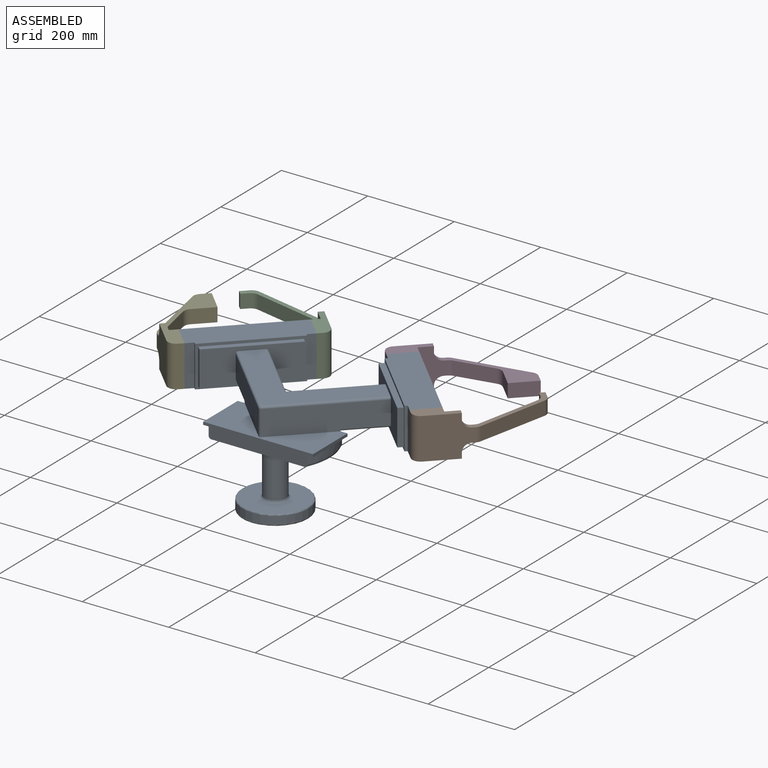
[diagram: assembled view]
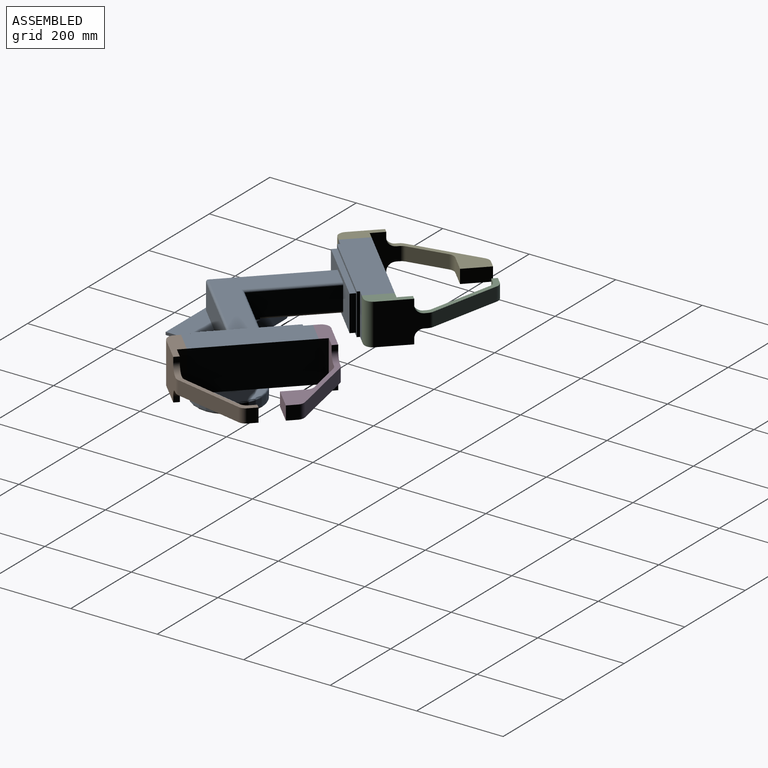
[diagram: assembled view, second angle]
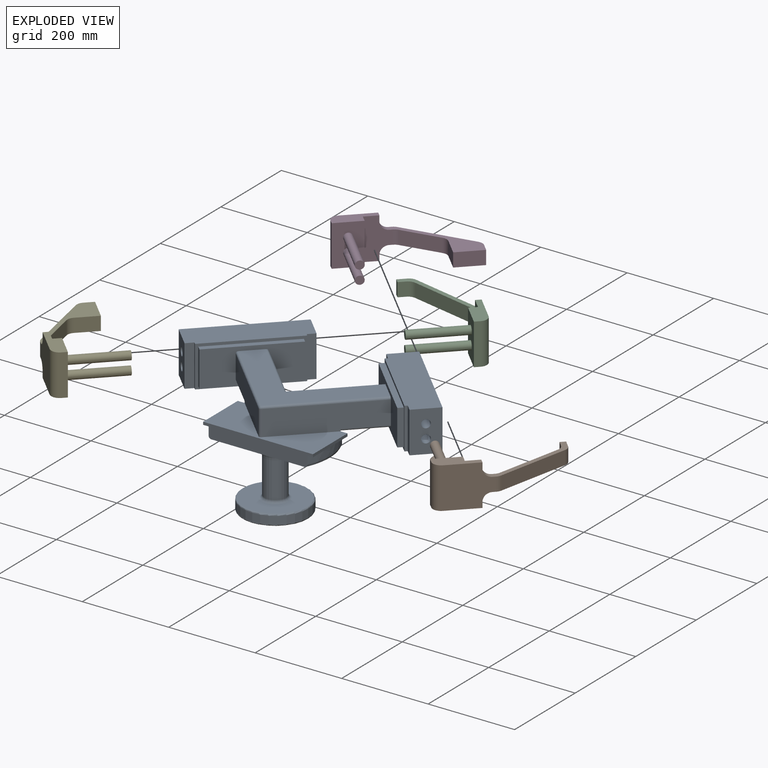
[diagram: exploded view]
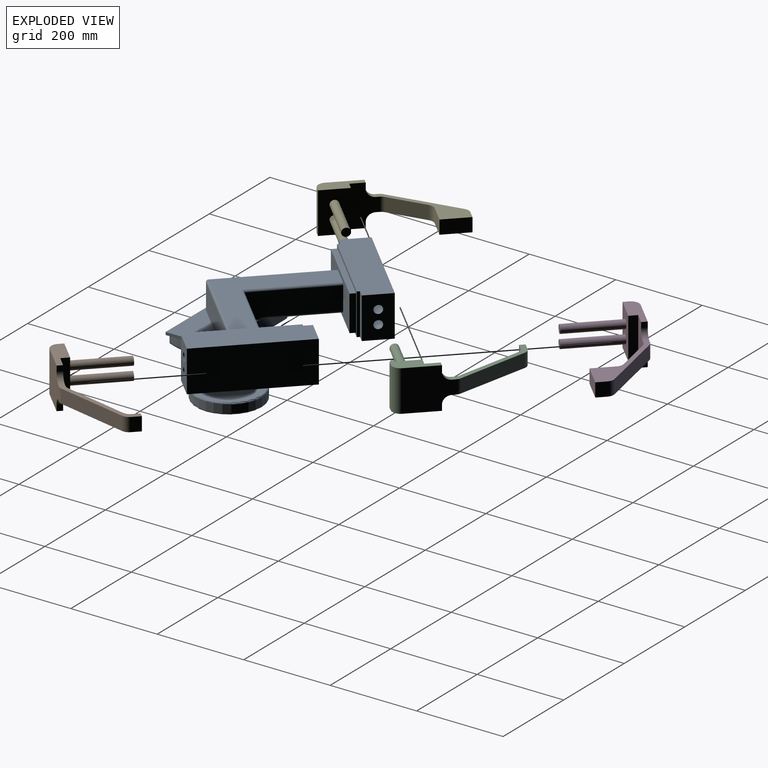
[diagram: exploded view, second angle]
ASSEMBLY  parts=5 mates=4
PART A: 74 faces, bbox 612.3x380.7x253 mm
  f0: plane 254x114.3mm, normal (0,0,1), area 16709.7mm2, adj f9,f11,f19,f20,f27,f28,f37
  f1: cylinder r=76.2mm len=152.4mm, axis (0,0,-1), area 9120.7mm2, adj f4,f5
  f2: plane 146.05x146.05mm, normal (0,0,1), area 13586.1mm2, adj f5,f7
  f3: plane 146.05x146.05mm, normal (0,0,-1), area 16753mm2, adj f4
  f4: torus R=73.03mm, axis (0,0,1), area 2351.6mm2, adj f1,f3
  f5: torus R=73.03mm, axis (0,0,1), area 2351.6mm2, adj f1,f2
  f6: cylinder r=25.4mm len=82.55mm, axis (0,0,-1), area 13174.4mm2, adj f7,f13
  f7: torus R=31.75mm, axis (0,0,1), area 1736.5mm2, adj f2,f6
  f8: extruded ~114.3x19.05mm, area 2247.1mm2, adj f9,f11,f14,f16,f17
  f9: plane 255.18x32.93mm, normal (0,-1,0), area 7400.3mm2, adj f0,f8,f10,f12,f14,f15,f16,f19
  f10: extruded ~114.3x19.05mm, area 2247.1mm2, adj f9,f11,f15,f18,f22
  f11: plane 256.14x38.97mm, normal (0,1,0), area 7431.7mm2, adj f0,f8,f10,f12,f14,f15,f17,f18
  f12: plane 241.3x114.38mm, normal (0,0,-1), area 18457.1mm2, adj f9,f11,f13,f14,f15
  f13: torus R=50.8mm, axis (0,0,1), area 8681.3mm2, adj f6,f12
  f14: bspline ~126.12x21.61mm, area 1185.5mm2, adj f8,f9,f11,f12
  f15: bspline ~126.12x21.61mm, area 1185.5mm2, adj f9,f10,f11,f12
  f16: plane 58.34x13.89mm, normal (0,0,-1), area 241.9mm2, adj f8,f9,f20
  f17: plane 58.34x13.89mm, normal (0,0,-1), area 241.9mm2, adj f8,f11,f20
  f18: plane 58.34x13.89mm, normal (0,0,-1), area 241.9mm2, adj f10,f11,f19
  f19: plane 114.3x6.35mm, normal (1,0,0), area 725.8mm2, adj f0,f9,f11,f18,f22
  f20: plane 114.3x6.35mm, normal (-1,0,0), area 725.8mm2, adj f0,f9,f11,f16,f17
  f21: plane 42.46x21.23mm, normal (0,0,1), area 450.7mm2, adj f11,f25,f26
  f22: plane 58.34x13.89mm, normal (0,0,-1), area 241.9mm2, adj f9,f10,f19
  f23: plane 147.34x109.62mm, normal (0,0,-1), area 6846.4mm2, adj f11,f30,f33,f55
  f24: plane 147.34x109.62mm, normal (0,0,-1), area 6846.4mm2, adj f11,f31,f32,f44
  f25: plane 134.44x134.44mm, normal (-0.71,0.71,0), area 10293.8mm2, adj f11,f21,f26,f30,f38,f55
  f26: plane 134.44x134.44mm, normal (0.71,0.71,0), area 10293.8mm2, adj f11,f21,f25,f31,f39,f44
  f27: plane 175.75x175.75mm, normal (-0.71,-0.71,0), area 14029.3mm2, adj f0,f11,f32,f34,f37,f44
  f28: plane 175.75x175.75mm, normal (0.71,-0.71,0), area 14029.3mm2, adj f0,f11,f33,f35,f37,f55
  f29: plane 351.5x213.47mm, normal (0,0,1), area 23669.7mm2, adj f34,f35,f38,f39,f44,f55
  f30: cylinder r=5.08mm len=116.8mm, axis (-0.71,-0.71,0), area 1257.3mm2, adj f11,f23,f25,f55
  f31: cylinder r=5.08mm len=116.8mm, axis (-0.71,0.71,0), area 1257.3mm2, adj f11,f24,f26,f44
  f32: cylinder r=5.08mm len=75.49mm, axis (0.71,-0.71,0), area 791.1mm2, adj f11,f24,f27,f44
  f33: cylinder r=5.08mm len=75.49mm, axis (0.71,0.71,0), area 791.1mm2, adj f11,f23,f28,f55
  f34: cylinder r=5.08mm len=179.34mm, axis (-0.71,0.71,0), area 1983.3mm2, adj f27,f29,f36,f44
  f35: cylinder r=5.08mm len=179.34mm, axis (-0.71,-0.71,0), area 1983.3mm2, adj f28,f29,f36,f55
  f36: sphere r=5.08mm, area 40.5mm2, adj f34,f35,f37
  f37: cylinder r=5.08mm len=58.42mm, axis (0,0,1), area 466.2mm2, adj f0,f27,f28,f36
  f38: cylinder r=5.08mm len=141.62mm, axis (0.71,0.71,0), area 1537.4mm2, adj f25,f29,f39,f55
  f39: cylinder r=5.08mm len=141.62mm, axis (0.71,-0.71,0), area 1537.4mm2, adj f26,f29,f38,f44
  f40: plane 152.66x152.66mm, normal (0,0,-1), area 2580.6mm2, adj f41,f43,f44,f49
  f41: plane 82.55x8.98mm, normal (-0.71,-0.71,0), area 1048.4mm2, adj f40,f42,f44,f49
  f42: plane 152.66x152.66mm, normal (0,0,1), area 2580.6mm2, adj f41,f43,f44,f49
  f43: plane 82.55x8.98mm, normal (0.71,0.71,0), area 1048.4mm2, adj f40,f42,f44,f49
  f44: plane 143.68x143.68mm, normal (0.71,-0.71,0), area 12764.1mm2, adj f24,f26,f27,f29,f31,f32,f34,f39
  f45: plane 95.25x4.49mm, normal (-0.71,-0.71,0), area 604.8mm2, adj f46,f48,f49,f50
  f46: plane 224.51x224.51mm, normal (0,0,1), area 17500mm2, adj f45,f47,f49,f50,f51,f52,f53,f54
  f47: plane 95.25x4.49mm, normal (0.71,0.71,0), area 604.8mm2, adj f46,f48,f49,f51
  f48: plane 224.51x224.51mm, normal (0,0,-1), area 17500mm2, adj f45,f47,f49,f50,f51,f52,f53,f54
  f49: plane 152.66x152.66mm, normal (0.71,-0.71,0), area 3790.3mm2, adj f40,f41,f42,f43,f45,f46,f47,f48
  f50: plane 95.25x13.47mm, normal (0.71,-0.71,0), area 1814.5mm2, adj f45,f46,f48,f52
  f51: plane 95.25x13.47mm, normal (0.71,-0.71,0), area 1814.5mm2, adj f46,f47,f48,f53
  f52: plane 95.25x44.9mm, normal (-0.71,-0.71,0), area 5478.3mm2, adj f46,f48,f50,f54,f72,f73
  f53: plane 95.25x44.9mm, normal (0.71,0.71,0), area 5478.3mm2, adj f46,f48,f51,f54,f72,f73
  f54: plane 179.61x179.61mm, normal (-0.71,0.71,0), area 24193.5mm2, adj f46,f48,f52,f53
  f55: plane 143.68x143.68mm, normal (-0.71,-0.71,0), area 12764.1mm2, adj f23,f25,f28,f29,f30,f33,f35,f38
  f56: plane 152.66x152.66mm, normal (0,0,-1), area 2580.6mm2, adj f55,f57,f59,f64
  f57: plane 82.55x8.98mm, normal (-0.71,0.71,0), area 1048.4mm2, adj f55,f56,f58,f64
  f58: plane 152.66x152.66mm, normal (0,0,1), area 2580.6mm2, adj f55,f57,f59,f64
  f59: plane 82.55x8.98mm, normal (0.71,-0.71,0), area 1048.4mm2, adj f55,f56,f58,f64
  f60: plane 224.51x224.51mm, normal (0,0,-1), area 17500mm2, adj f61,f63,f64,f65,f66,f67,f68,f69
  f61: plane 95.25x4.49mm, normal (-0.71,0.71,0), area 604.8mm2, adj f60,f62,f64,f65
  f62: plane 224.51x224.51mm, normal (0,0,1), area 17500mm2, adj f61,f63,f64,f65,f66,f67,f68,f69
  f63: plane 95.25x4.49mm, normal (0.71,-0.71,0), area 604.8mm2, adj f60,f62,f64,f69
  f64: plane 152.66x152.66mm, normal (-0.71,-0.71,0), area 3790.3mm2, adj f56,f57,f58,f59,f60,f61,f62,f63
  f65: plane 95.25x13.47mm, normal (-0.71,-0.71,0), area 1814.5mm2, adj f60,f61,f62,f66
  f66: plane 95.25x44.9mm, normal (-0.71,0.71,0), area 5478.3mm2, adj f60,f62,f65,f68,f70,f71
  f67: plane 95.25x44.9mm, normal (0.71,-0.71,0), area 5478.3mm2, adj f60,f62,f68,f69,f70,f71
  f68: plane 179.61x179.61mm, normal (0.71,0.71,0), area 24193.5mm2, adj f60,f62,f66,f67
  f69: plane 95.25x13.47mm, normal (-0.71,-0.71,0), area 1814.5mm2, adj f60,f62,f63,f67
  f70: cylinder r=9.53mm len=193.08mm, axis (-0.71,0.71,0), area 15201.2mm2, adj f66,f67
  f71: cylinder r=9.53mm len=193.08mm, axis (-0.71,0.71,0), area 15201.2mm2, adj f66,f67
  f72: cylinder r=9.53mm len=193.08mm, axis (-0.71,-0.71,0), area 15201.2mm2, adj f52,f53
  f73: cylinder r=9.53mm len=193.08mm, axis (-0.71,-0.71,0), area 15201.2mm2, adj f52,f53
PART B: 27 faces, bbox 221.5x282.8x95.3 mm
  f0: plane 95.25x72.3mm, normal (0.71,-0.71,0), area 8240.8mm2, adj f10,f11,f12,f13,f14,f15,f16,f17
  f1: plane 95.25x8.98mm, normal (-0.71,-0.71,0), area 1209.7mm2, adj f2,f12,f15,f18
  f2: plane 95.25x44.9mm, normal (-0.71,0.71,0), area 5478.3mm2, adj f1,f6,f12,f15,f23,f25
  f3: plane 31.75x8.98mm, normal (-0.71,0.71,0), area 403.2mm2, adj f4,f9,f10,f11
  f4: plane 31.75x14.95mm, normal (0.71,0.71,0), area 671.4mm2, adj f3,f10,f11,f21
  f5: plane 163.02x33.64mm, normal (0.98,-0.2,0), area 5284.8mm2, adj f10,f11,f21,f22
  f6: plane 95.25x13.47mm, normal (0.71,0.71,0), area 1814.5mm2, adj f2,f7,f12,f15
  f7: plane 95.25x40.87mm, normal (-0.71,0.71,0), area 4006.9mm2, adj f6,f10,f11,f12,f13,f14,f15,f16
  f8: plane 148.13x31.75mm, normal (-0.98,0.2,0), area 4802.1mm2, adj f10,f11,f19,f20
  f9: plane 31.75x11.88mm, normal (-0.71,-0.71,0), area 533.4mm2, adj f3,f10,f11,f20
  f10: plane 209.85x53.14mm, normal (0,0,-1), area 2387.5mm2, adj f0,f3,f4,f5,f7,f8,f9,f17
  f11: plane 209.85x53.14mm, normal (0,0,1), area 2387.5mm2, adj f0,f3,f4,f5,f7,f8,f9,f16
  f12: plane 89.8x68.44mm, normal (0,0,-1), area 2341.5mm2, adj f0,f1,f2,f6,f7,f13,f18
  f13: plane 12.7x8.98mm, normal (0.71,0.71,0), area 161.3mm2, adj f0,f7,f12,f17
  f14: plane 12.7x8.98mm, normal (0.71,0.71,0), area 161.3mm2, adj f0,f7,f15,f16
  f15: plane 89.8x68.44mm, normal (0,0,1), area 2341.5mm2, adj f0,f1,f2,f6,f7,f14,f18
  f16: cylinder r=19.05mm len=22.45mm, axis (0.71,-0.71,0), area 380mm2, adj f0,f7,f11,f14
  f17: cylinder r=19.05mm len=22.45mm, axis (0.71,-0.71,0), area 380mm2, adj f0,f7,f10,f13
  f18: cylinder r=19.05mm len=95.25mm, axis (0,0,1), area 2850.2mm2, adj f0,f1,f12,f15
  f19: cylinder r=19.05mm len=31.75mm, axis (0,0,1), area 352mm2, adj f7,f8,f10,f11
  f20: cylinder r=19.05mm len=31.75mm, axis (0,0,1), area 598.1mm2, adj f8,f9,f10,f11
  f21: cylinder r=19.05mm len=31.75mm, axis (0,0,1), area 598.1mm2, adj f4,f5,f10,f11
  f22: cylinder r=19.05mm len=31.75mm, axis (0,0,1), area 352mm2, adj f0,f5,f10,f11
  f23: cylinder r=9.53mm len=103.27mm, axis (0.71,-0.71,0), area 7600.6mm2, adj f2,f24
  f24: plane 19.05x13.47mm, normal (-0.71,0.71,0), area 285mm2, adj f23
  f25: cylinder r=9.53mm len=103.27mm, axis (0.71,-0.71,0), area 7600.6mm2, adj f2,f26
  f26: plane 19.05x13.47mm, normal (-0.71,0.71,0), area 285mm2, adj f25
PART C: same geometry as B
PART D: 27 faces, bbox 284x221.5x95.3 mm
  f0: plane 211.04x66.61mm, normal (0,0,1), area 4717.7mm2, adj f4,f5,f6,f7,f8,f9,f15,f17
  f1: plane 211.04x66.61mm, normal (0,0,-1), area 4717.7mm2, adj f4,f5,f6,f7,f8,f9,f16,f17
  f2: plane 95.25x44.9mm, normal (0.71,-0.71,0), area 5478.3mm2, adj f3,f10,f11,f14,f23,f25
  f3: plane 95.25x8.98mm, normal (-0.71,-0.71,0), area 1209.7mm2, adj f2,f11,f14,f21
  f4: plane 95.25x72.3mm, normal (-0.71,0.71,0), area 8240.8mm2, adj f0,f1,f11,f12,f13,f14,f15,f16
  f5: plane 163.02x33.64mm, normal (-0.2,0.98,0), area 5284.8mm2, adj f0,f1,f17,f20
  f6: plane 31.75x16.13mm, normal (0.71,0.71,0), area 724.4mm2, adj f0,f1,f17,f22
  f7: plane 36.69x36.69mm, normal (-0.71,-0.71,0), area 1647.6mm2, adj f0,f1,f18,f22
  f8: plane 88.57x31.75mm, normal (0.2,-0.98,0), area 2871.4mm2, adj f0,f1,f18,f19
  f9: plane 95.25x40.87mm, normal (0.71,-0.71,0), area 4006.9mm2, adj f0,f1,f10,f11,f12,f13,f14,f15
  f10: plane 95.25x13.47mm, normal (0.71,0.71,0), area 1814.5mm2, adj f2,f9,f11,f14
  f11: plane 89.8x68.44mm, normal (0,0,-1), area 2341.5mm2, adj f2,f3,f4,f9,f10,f12,f21
  f12: plane 12.7x8.98mm, normal (0.71,0.71,0), area 161.3mm2, adj f4,f9,f11,f16
  f13: plane 12.7x8.98mm, normal (0.71,0.71,0), area 161.3mm2, adj f4,f9,f14,f15
  f14: plane 89.8x68.44mm, normal (0,0,1), area 2341.5mm2, adj f2,f3,f4,f9,f10,f13,f21
  f15: cylinder r=19.05mm len=22.45mm, axis (0.71,-0.71,0), area 380mm2, adj f0,f4,f9,f13
  f16: cylinder r=19.05mm len=22.45mm, axis (0.71,-0.71,0), area 380mm2, adj f1,f4,f9,f12
  f17: cylinder r=19.05mm len=31.75mm, axis (0,0,-1), area 598.1mm2, adj f0,f1,f5,f6
  f18: cylinder r=19.05mm len=31.75mm, axis (0,0,1), area 598.1mm2, adj f0,f1,f7,f8
  f19: cylinder r=19.05mm len=31.75mm, axis (0,0,-1), area 352mm2, adj f0,f1,f8,f9
  f20: cylinder r=19.05mm len=31.75mm, axis (0,0,1), area 352mm2, adj f0,f1,f4,f5
  f21: cylinder r=19.05mm len=95.25mm, axis (0,0,1), area 2850.2mm2, adj f3,f4,f11,f14
  f22: plane 44.9x44.9mm, normal (0.71,-0.71,0), area 2016.1mm2, adj f0,f1,f6,f7
  f23: cylinder r=9.53mm len=103.27mm, axis (-0.71,0.71,0), area 7600.6mm2, adj f2,f24
  f24: plane 19.05x13.47mm, normal (0.71,-0.71,0), area 285mm2, adj f23
  f25: cylinder r=9.53mm len=103.27mm, axis (-0.71,0.71,0), area 7600.6mm2, adj f2,f26
  f26: plane 19.05x13.47mm, normal (0.71,-0.71,0), area 285mm2, adj f25
PART E: same geometry as D
PLACE A t=(-119.01,-77.86,34.74)mm
PLACE B t=(-119.01,-77.86,34.74)mm
PLACE C rot(axis=(0,0,1),90deg) t=(-127.99,-86.85,34.74)mm
PLACE D t=(-119.01,-77.86,34.74)mm
PLACE E rot(axis=(0,0,1),90deg) t=(-127.99,-86.85,34.74)mm
MATE slider D.f25 <-> A.f70  axis (-0.71,0.71,0) through (-16,195.77,253.81)mm
MATE slider E.f25 <-> A.f73  axis (-0.71,-0.71,0) through (-401.63,16.16,253.81)mm
MATE slider C.f23 <-> A.f73  axis (0.71,0.71,0) through (-222.02,195.77,253.81)mm
MATE slider B.f23 <-> A.f70  axis (-0.71,0.71,0) through (163.6,16.16,253.81)mm
